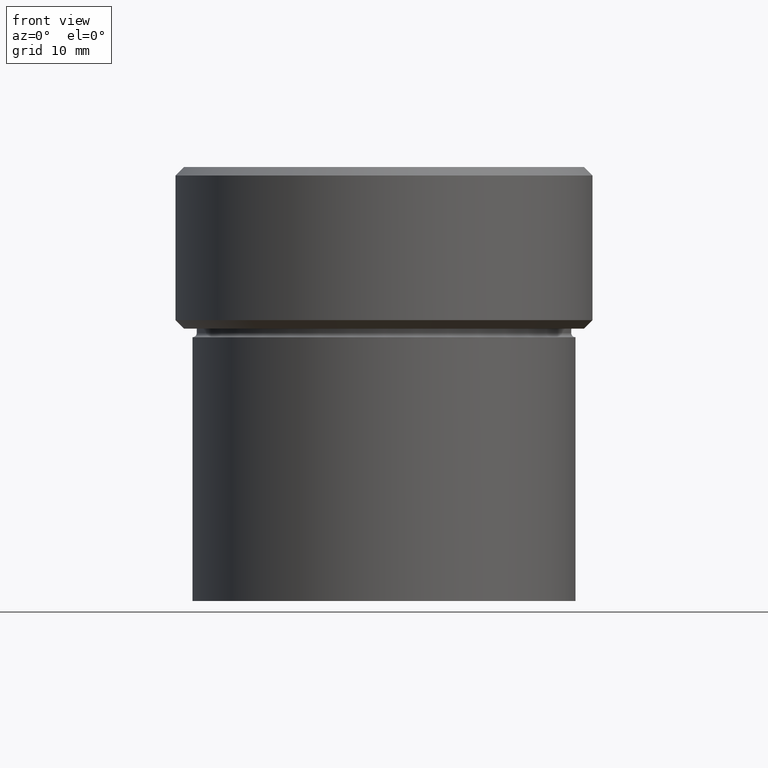
[diagram: clean part render]
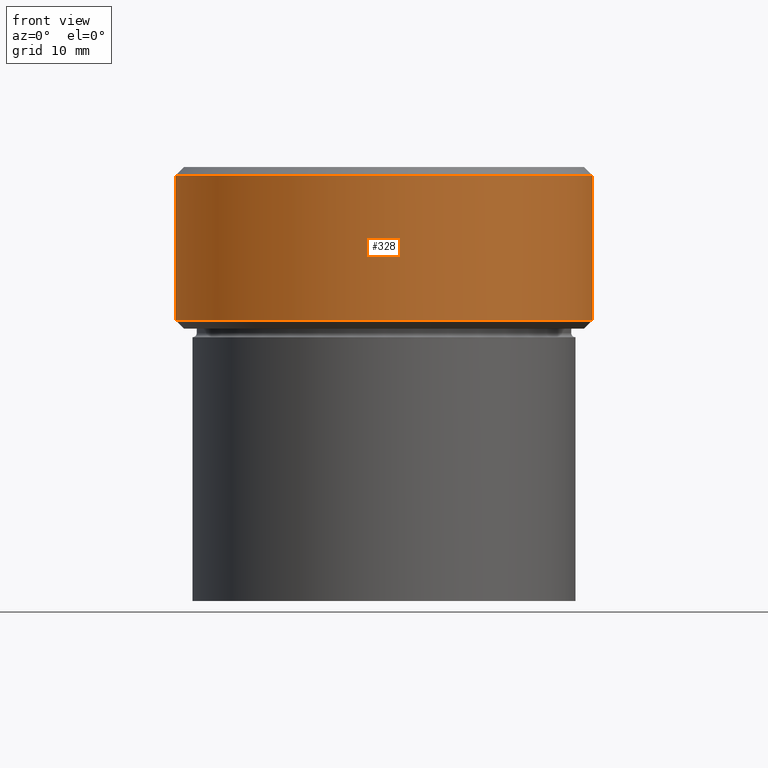
[diagram: same view with one face highlighted and labeled with its STEP entity id]
A machine part, front view. The second image highlights one B-rep face of the part: STEP entity #328.
In plain terms, the highlighted cylindrical surface (partial cylindrical patch) has radius 24.5 mm, axis along (-0, -0, 1).
Its self-contained STEP definition (entity closure, byte-faithful):
#4 = DIRECTION ( 'NONE',  ( -0.000000000000000000, -0.000000000000000000, 1.000000000000000000 ) ) ;
#5 = AXIS2_PLACEMENT_3D ( 'NONE', #336, #82, #50 ) ;
#28 = VERTEX_POINT ( 'NONE', #374 ) ;
#31 = ORIENTED_EDGE ( 'NONE', *, *, #290, .T. ) ;
#50 = DIRECTION ( 'NONE',  ( 1.000000000000000000, 0.000000000000000000, 0.000000000000000000 ) ) ;
#61 = ORIENTED_EDGE ( 'NONE', *, *, #129, .T. ) ;
#69 = EDGE_CURVE ( 'NONE', #28, #153, #195, .T. ) ;
#71 = CARTESIAN_POINT ( 'NONE',  ( 24.50000000000000000, 0.000000000000000000, -0.9999999999999940048 ) ) ;
#75 = CARTESIAN_POINT ( 'NONE',  ( -24.50000000000000000, 3.000384657911015469E-15, -0.9999999999999940048 ) ) ;
#82 = DIRECTION ( 'NONE',  ( -0.000000000000000000, -0.000000000000000000, 1.000000000000000000 ) ) ;
#94 = DIRECTION ( 'NONE',  ( -0.000000000000000000, -0.000000000000000000, 1.000000000000000000 ) ) ;
#97 = CARTESIAN_POINT ( 'NONE',  ( 24.50000000000000000, 0.000000000000000000, 0.000000000000000000 ) ) ;
#101 = AXIS2_PLACEMENT_3D ( 'NONE', #302, #94, #513 ) ;
#116 = AXIS2_PLACEMENT_3D ( 'NONE', #446, #359, #283 ) ;
#129 = EDGE_CURVE ( 'NONE', #132, #162, #160, .T. ) ;
#132 = VERTEX_POINT ( 'NONE', #71 ) ;
#153 = VERTEX_POINT ( 'NONE', #486 ) ;
#156 = VECTOR ( 'NONE', #304, 1000.000000000000000 ) ;
#160 = CIRCLE ( 'NONE', #116, 24.50000000000000000 ) ;
#162 = VERTEX_POINT ( 'NONE', #75 ) ;
#168 = FACE_OUTER_BOUND ( 'NONE', #225, .T. ) ;
#195 = CIRCLE ( 'NONE', #101, 24.50000000000000000 ) ;
#225 = EDGE_LOOP ( 'NONE', ( #433, #311, #31, #61 ) ) ;
#275 = VECTOR ( 'NONE', #4, 1000.000000000000000 ) ;
#283 = DIRECTION ( 'NONE',  ( 1.000000000000000000, 0.000000000000000000, 0.000000000000000000 ) ) ;
#290 = EDGE_CURVE ( 'NONE', #153, #132, #503, .T. ) ;
#291 = CYLINDRICAL_SURFACE ( 'NONE', #5, 24.50000000000000000 ) ;
#302 = CARTESIAN_POINT ( 'NONE',  ( 0.000000000000000000, 0.000000000000000000, -17.99999999999998224 ) ) ;
#304 = DIRECTION ( 'NONE',  ( -0.000000000000000000, -0.000000000000000000, 1.000000000000000000 ) ) ;
#311 = ORIENTED_EDGE ( 'NONE', *, *, #69, .T. ) ;
#328 = ADVANCED_FACE ( 'NONE', ( #168 ), #291, .T. ) ;
#336 = CARTESIAN_POINT ( 'NONE',  ( 0.000000000000000000, 0.000000000000000000, 0.000000000000000000 ) ) ;
#343 = LINE ( 'NONE', #380, #156 ) ;
#359 = DIRECTION ( 'NONE',  ( 0.000000000000000000, 0.000000000000000000, -1.000000000000000000 ) ) ;
#374 = CARTESIAN_POINT ( 'NONE',  ( -24.50000000000000000, 3.000384657911015469E-15, -17.99999999999998224 ) ) ;
#380 = CARTESIAN_POINT ( 'NONE',  ( -24.50000000000000000, 3.000384657911015469E-15, 0.000000000000000000 ) ) ;
#394 = EDGE_CURVE ( 'NONE', #28, #162, #343, .T. ) ;
#433 = ORIENTED_EDGE ( 'NONE', *, *, #394, .F. ) ;
#446 = CARTESIAN_POINT ( 'NONE',  ( 0.000000000000000000, 0.000000000000000000, -0.9999999999999940048 ) ) ;
#486 = CARTESIAN_POINT ( 'NONE',  ( 24.50000000000000000, 0.000000000000000000, -17.99999999999998224 ) ) ;
#503 = LINE ( 'NONE', #97, #275 ) ;
#513 = DIRECTION ( 'NONE',  ( -1.000000000000000000, 0.000000000000000000, 0.000000000000000000 ) ) ;